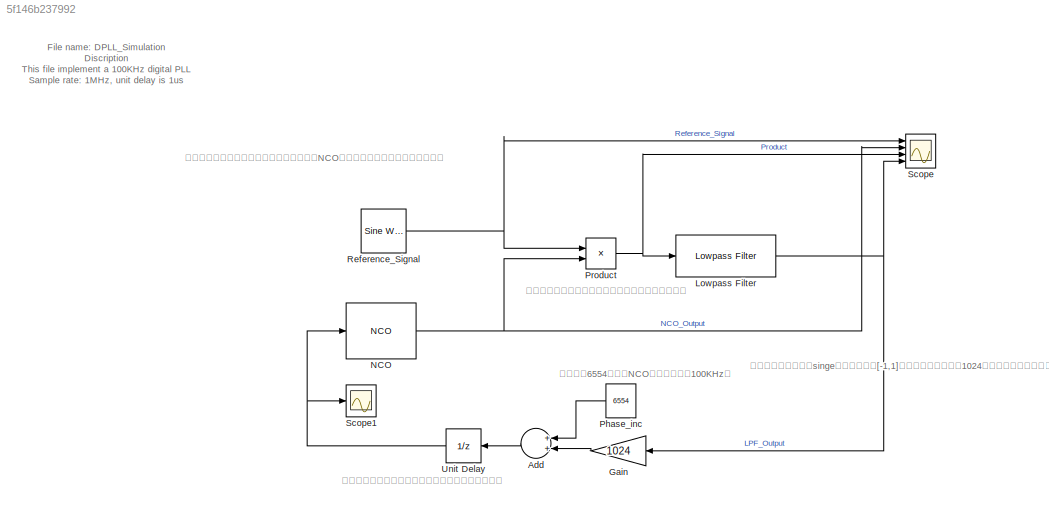
MODEL slx_5f146b237992
KIND model
CONFIG AbsTol = auto
CONFIG EnableMultiTasking = off
CONFIG FixedStep = auto
CONFIG MaxStep = 1e-6
CONFIG MinStep = auto
CONFIG RelTol = 1e-3
CONFIG SampleTimeConstraint = Unconstrained
CONFIG Solver = VariableStepAuto
CONFIG SolverName = VariableStepAuto
CONFIG StartTime = 0.0
CONFIG StopTime = 0.001
BLOCK [Sum] Add
  InputSameDT = off
  OutDataTypeStr = Inherit: Inherit via internal rule
  Ports = [2, 1]
  SaturateOnIntegerOverflow = off
BLOCK [Gain] Gain
  Gain = 1024
  OutDataTypeStr = int16
  ParamDataTypeStr = Inherit: Inherit via internal rule
  SaturateOnIntegerOverflow = off
BLOCK [Reference] Lowpass Filter  REF=dspfdesign/Lowpass Filter
  Ports = [1, 1]
  SourceBlock = dspfdesign/Lowpass Filter
  SourceProductBaseCode = DS
  SourceProductName = DSP System Toolbox
  SourceType = dsp.LowpassFilter
BLOCK [Reference] NCO  REF=dspsigops/NCO
  Ports = [1, 1]
  SourceBlock = dspsigops/NCO
  SourceProductBaseCode = DS
  SourceProductName = DSP System Toolbox
  SourceType = NCO
BLOCK [Constant] Phase_inc
  OutDataTypeStr = int16
  SampleTime = 1e-6
  Value = 6554
  VectorParams1D = off
BLOCK [Product] Product
  InputSameDT = off
  OutDataTypeStr = Inherit: Inherit via internal rule
  Ports = [2, 1]
  RndMeth = Floor
  SaturateOnIntegerOverflow = off
BLOCK [Reference] Reference_Signal  REF=dspsrcs4/Sine Wave
  Ports = [0, 1]
  SourceBlock = dspsrcs4/Sine Wave
  SourceProductBaseCode = DS
  SourceProductName = DSP System Toolbox
  SourceType = Sine Wave
BLOCK [Scope] Scope
  Floating = off
  NumInputPorts = 4
  Ports = [4]
  ScopeSpecificationString = Simulink.scopes.TimeScopeBlockCfg('CurrentConfiguration', extmgr.ConfigurationSet(extmgr.Configuration('Core','General UI',true),extmgr.Configuration('Core','Source UI',true),extmgr.Configuration('Sources','WiredSimulink',true),extmgr.Configuration('Visuals','Time Domain',true,'SerializedDisplays',{struct('MinYLimReal','-1.25','MaxYLimReal','1.25','YLabelReal','','MinYLimMag','0.00000','MaxYLimMag...<+1403ch>
BLOCK [Scope] Scope1
  Floating = off
  NumInputPorts = 1
  Ports = [1]
  ScopeSpecificationString = Simulink.scopes.TimeScopeBlockCfg('CurrentConfiguration', extmgr.ConfigurationSet(extmgr.Configuration('Core','General UI',true),extmgr.Configuration('Core','Source UI',true),extmgr.Configuration('Sources','WiredSimulink',true,'DataLoggingVariableName','ScopeData1'),extmgr.Configuration('Visuals','Time Domain',true,'SerializedDisplays',{struct('MinYLimReal','-884.25','MaxYLimReal','7958.25','YLabe...<+1421ch>
BLOCK [UnitDelay] Unit Delay
  HasFrameUpgradeWarning = on
  SampleTime = -1
ANNOTATION (root): File name: DPLL_Simulation Discription This file implement a 100KHz digital PLL Sample rate: 1MHz, unit delay is 1us
ANNOTATION (root): 为了解决仿真中的代数环问题，插入一个单位延迟。
ANNOTATION (root): 乘法器和低通滤波器组成了个正弦鉴相曲线的鉴相器
ANNOTATION (root): 因为鉴相器的输出是singe型的，值域为[-1,1]，所以后面需要乘以1024，将反馈信号变为整数
ANNOTATION (root): 输入参考信号，可以改变该信号的频率，使NCO的输出频率跟随参考信号的频率。
ANNOTATION (root): 这里常数6554定义了NCO的初始频率为100KHz。
LINE Add:1 -> Unit Delay:1
LINE Gain:1 -> Add:2
NET Lowpass Filter:1 -> Gain:1, Scope:4
NET NCO:1 -> Product:2, Scope:2
LINE Phase_inc:1 -> Add:1
NET Product:1 -> Lowpass Filter:1, Scope:3
NET Reference_Signal:1 -> Product:1, Scope:1
NET Unit Delay:1 -> NCO:1, Scope1:1
note: NET lines group one-source signal fan-out (src -> all destinations, sorted); 1:1 wires keep LINE
